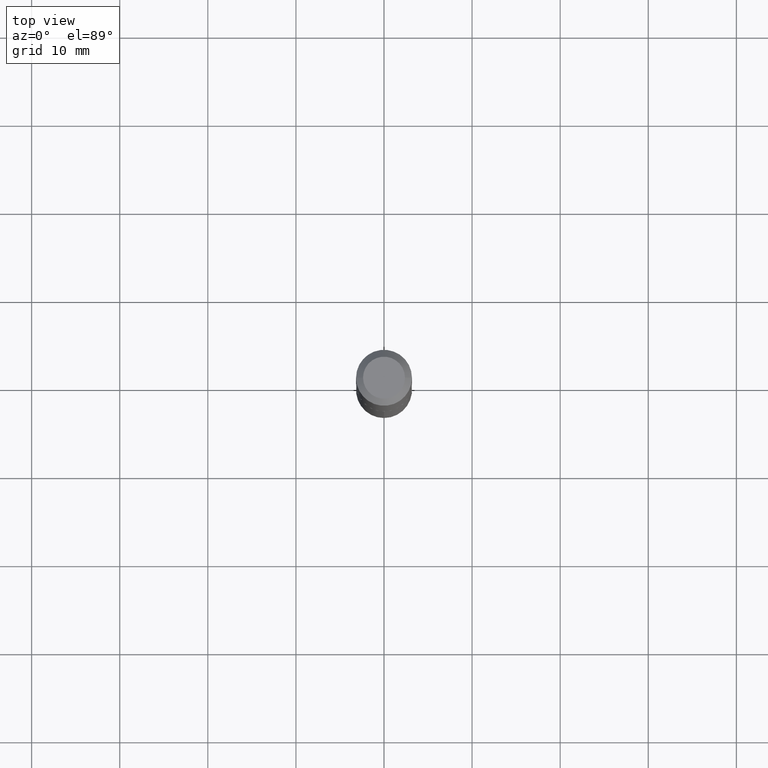
[diagram: clean part render]
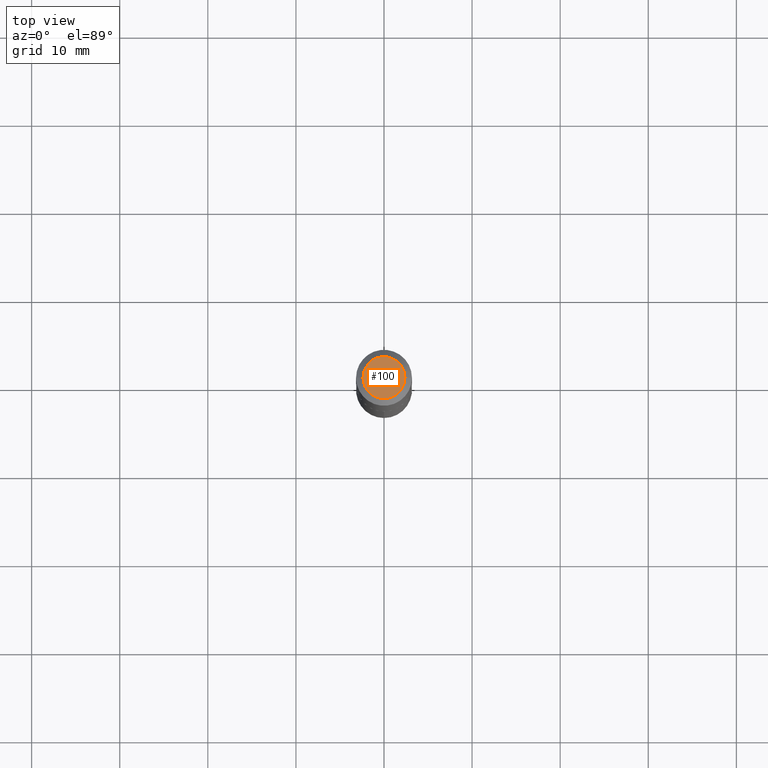
[diagram: same view with one face highlighted and labeled with its STEP entity id]
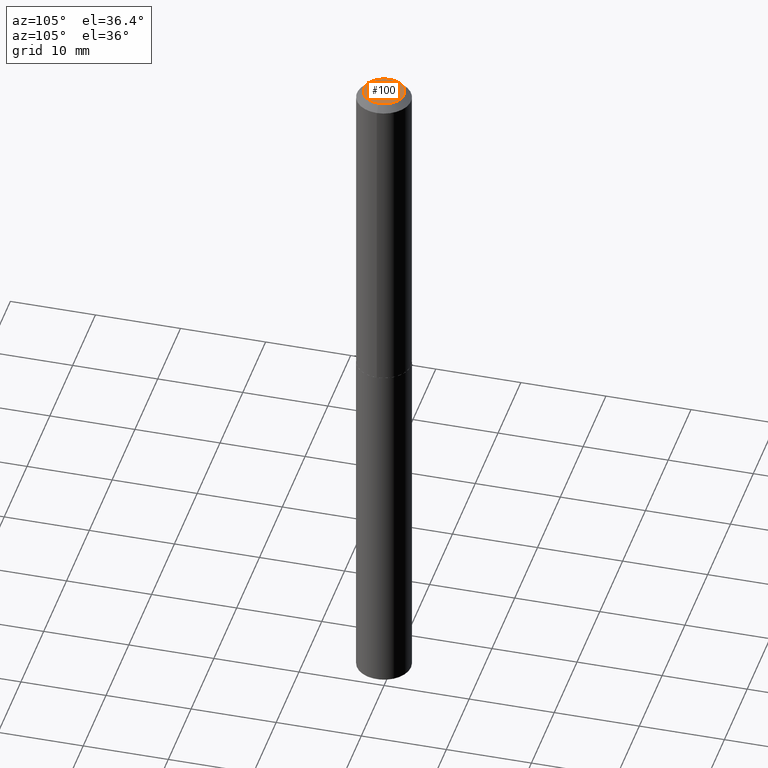
[diagram: same view with one face highlighted and labeled with its STEP entity id]
A machine part, top view. The second image highlights one B-rep face of the part: STEP entity #100.
A second angle (auxiliary view) of the same face is appended — the face is thin or edge-on in the first view.
In plain terms, the highlighted planar face has unit normal (0, -0, -1).
Its self-contained STEP definition (entity closure, byte-faithful):
#2 = CARTESIAN_POINT ( 'NONE',  ( -0.09374999999999998612, 7.092071469525108711E-16, 2.449293598247037114E-19 ) ) ;
#3 = CIRCLE ( 'NONE', #69, 0.09374999999999998612 ) ;
#8 = CARTESIAN_POINT ( 'NONE',  ( -5.989671091818699506E-48, 8.551662891794013634E-34, 2.449293598294725065E-19 ) ) ;
#20 = VERTEX_POINT ( 'NONE', #29 ) ;
#29 = CARTESIAN_POINT ( 'NONE',  ( 0.09374999999999998612, -8.049213644256857164E-16, 2.449293598345754986E-19 ) ) ;
#39 = EDGE_LOOP ( 'NONE', ( #367, #89 ) ) ;
#47 = FACE_OUTER_BOUND ( 'NONE', #39, .T. ) ;
#69 = AXIS2_PLACEMENT_3D ( 'NONE', #8, #165, #260 ) ;
#82 = CARTESIAN_POINT ( 'NONE',  ( -2.994835545909349753E-48, 4.275831445897006817E-34, 1.224646799147362533E-19 ) ) ;
#89 = ORIENTED_EDGE ( 'NONE', *, *, #169, .T. ) ;
#100 = ADVANCED_FACE ( 'NONE', ( #47 ), #289, .F. ) ;
#114 = DIRECTION ( 'NONE',  ( -1.000000000000000000, 6.982962677686265922E-15, -4.876176775795935793E-29 ) ) ;
#146 = VERTEX_POINT ( 'NONE', #2 ) ;
#165 = DIRECTION ( 'NONE',  ( -2.445468806185136597E-29, 3.491481338843145583E-15, 1.000000000000000000 ) ) ;
#169 = EDGE_CURVE ( 'NONE', #20, #146, #264, .T. ) ;
#186 = DIRECTION ( 'NONE',  ( -2.445468806185136597E-29, 3.491481338843145583E-15, 1.000000000000000000 ) ) ;
#260 = DIRECTION ( 'NONE',  ( 1.000000000000000000, -6.982962677686266711E-15, 4.876179125272552877E-29 ) ) ;
#264 = CIRCLE ( 'NONE', #385, 0.09374999999999998612 ) ;
#289 = PLANE ( 'NONE',  #317 ) ;
#303 = DIRECTION ( 'NONE',  ( 1.000000000000000000, -6.982962677686266711E-15, 4.876179125272552877E-29 ) ) ;
#317 = AXIS2_PLACEMENT_3D ( 'NONE', #82, #323, #114 ) ;
#323 = DIRECTION ( 'NONE',  ( 2.438088387897960049E-29, -3.491481338843145188E-15, -1.000000000000000000 ) ) ;
#326 = CARTESIAN_POINT ( 'NONE',  ( -5.989671091818699506E-48, 8.551662891794013634E-34, 2.449293598294725065E-19 ) ) ;
#362 = EDGE_CURVE ( 'NONE', #146, #20, #3, .T. ) ;
#367 = ORIENTED_EDGE ( 'NONE', *, *, #362, .T. ) ;
#385 = AXIS2_PLACEMENT_3D ( 'NONE', #326, #186, #303 ) ;